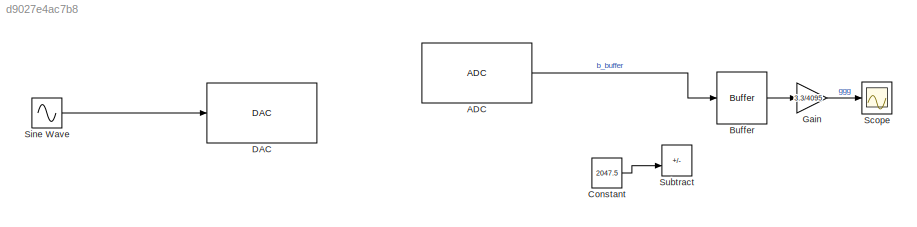
MODEL slx_d9027e4ac7b8
KIND model
CONFIG AbsTol = auto
CONFIG EnableMultiTasking = on
CONFIG FixedStep = auto
CONFIG MaxStep = auto
CONFIG MinStep = auto
CONFIG RelTol = 1e-3
CONFIG SampleTimeConstraint = Unconstrained
CONFIG SolverName = FixedStepAuto
CONFIG StartTime = 0.0
CONFIG StopTime = Inf
BLOCK [Reference] ADC  REF=c2802xlib/ADC
  LibrarySourceBlock = c28004xlib/ADC
  SourceBlock = c2802xlib/ADC
  SourceType = ADC Type 3-5
  UserDataPersistent = on
BLOCK [Buffer] Buffer
  OutputFrames = off
BLOCK [Constant] Constant
  Commented = on
  OutDataTypeStr = single
  Value = 2047.5
BLOCK [Reference] DAC  REF=c2837xDlib/DAC
  LibrarySourceBlock = c28004xlib/DAC
  SourceBlock = c2837xDlib/DAC
  SourceType = codertarget.tic2000.blocks.DACWrite
BLOCK [Gain] Gain
  Gain = 3.3/4095
BLOCK [Scope] Scope
  Commented = on
  Floating = off
  NumInputPorts = 1
  ScopeSpecificationString = Simulink.scopes.TimeScopeBlockCfg('CurrentConfiguration', extmgr.ConfigurationSet(extmgr.Configuration('Core','General UI',true),extmgr.Configuration('Core','Source UI',true),extmgr.Configuration('Sources','WiredSimulink',true,'DataLogging',true,'DataLoggingSaveFormat','StructureWithTime'),extmgr.Configuration('Visuals','Time Domain',true,'SerializedDisplays',{struct('MinYLimReal','-10.00000','Max...<+2099ch>
BLOCK [Sin] Sine Wave
  Amplitude = 2047.5
  Bias = 2047.5
  SampleTime = 0.01
  SineType = Sample based
BLOCK [Sum] Subtract
  Commented = on
  IconShape = rectangular
  Inputs = +-
LINE ADC:1 -> Buffer:1
LINE Buffer:1 -> Gain:1
LINE Constant:1 -> Subtract:2
LINE Gain:1 -> Scope:1
LINE Sine Wave:1 -> DAC:1
